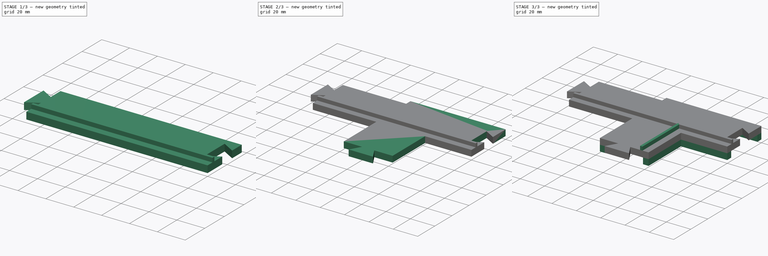
[diagram: build sequence overview — one tinted view per stage of 3, left to right]
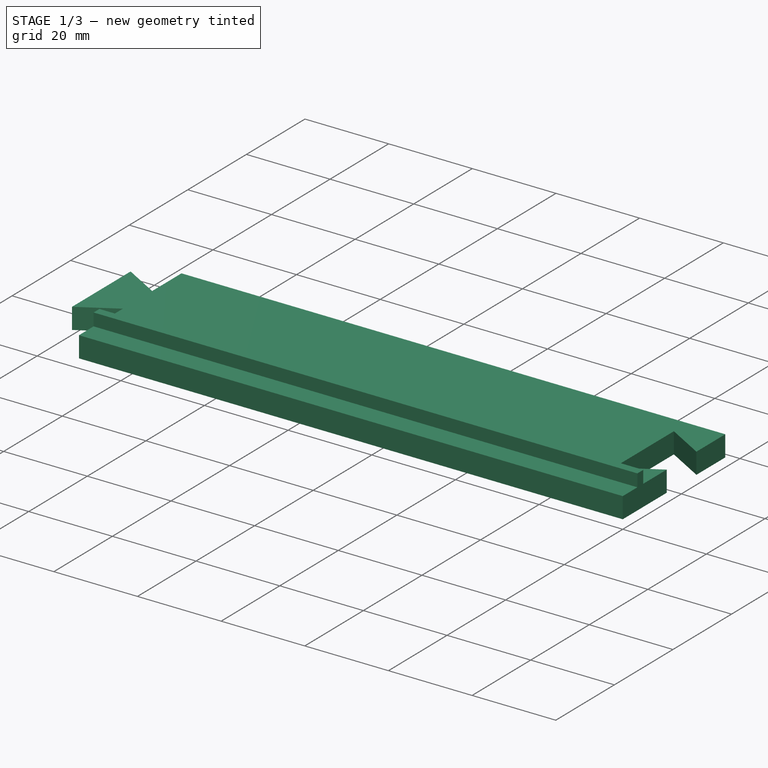
[diagram: stage 1 of 3 — iso view after this stage's code; geometry added in this stage tinted green]
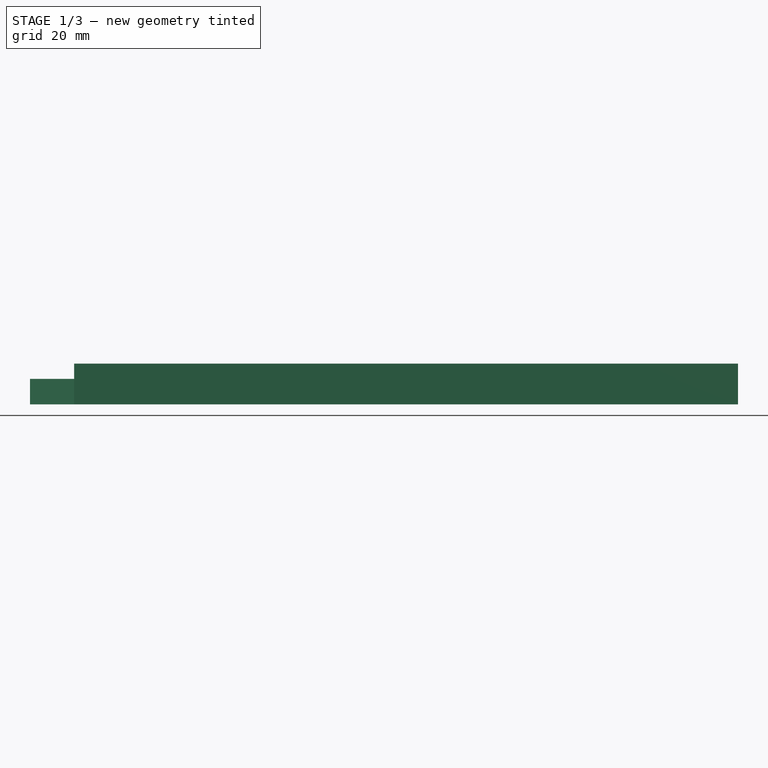
[diagram: stage 1 of 3 — front view after this stage's code; geometry added in this stage tinted green]
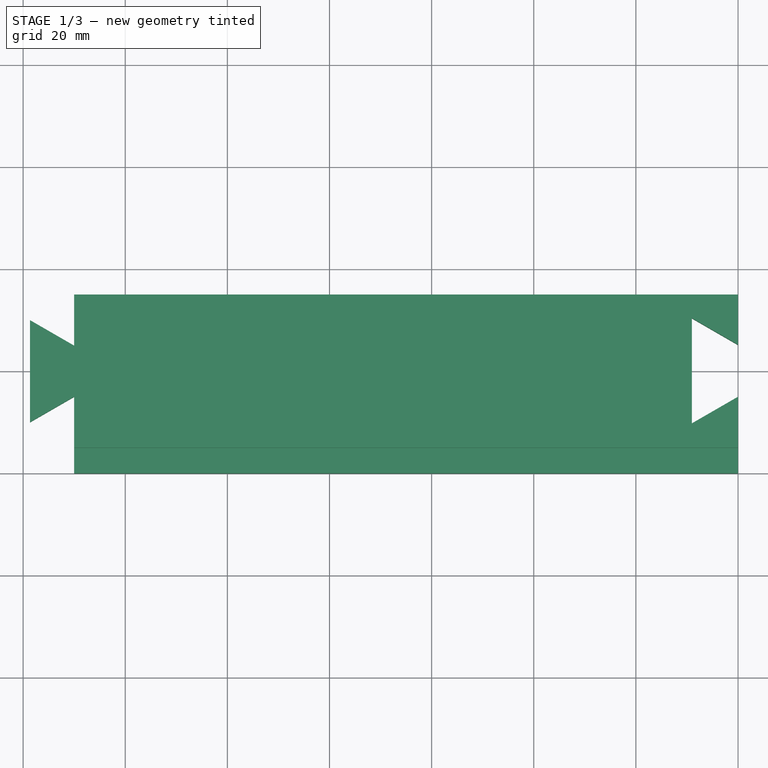
[diagram: stage 1 of 3 — top view after this stage's code; geometry added in this stage tinted green]
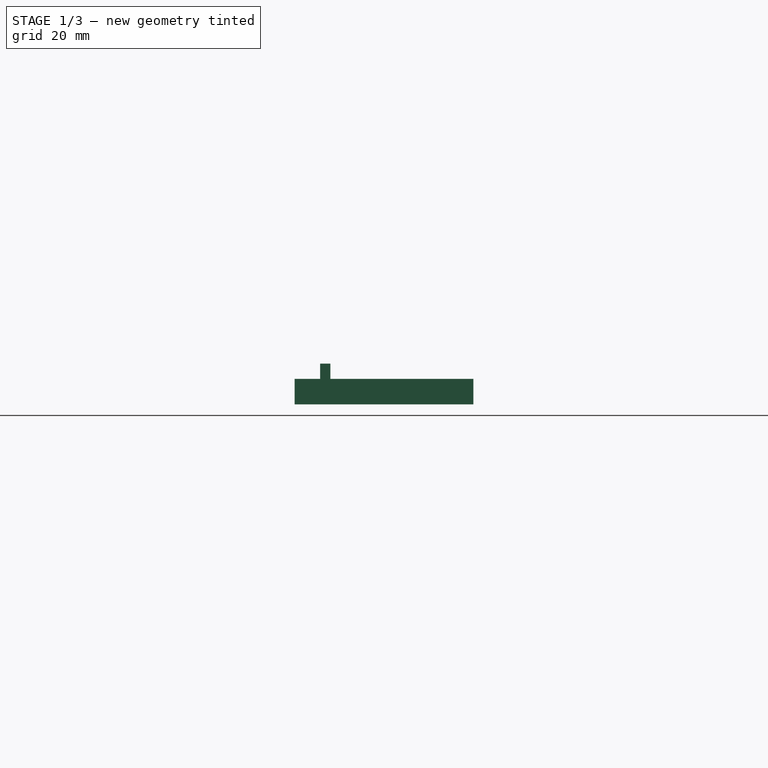
[diagram: stage 1 of 3 — right view after this stage's code; geometry added in this stage tinted green]
FCSTD DOCUMENT  (FreeCAD 0.20R)
Label: boardholdertop
License: All rights reserved
LicenseURL: http://en.wikipedia.org/wiki/All_rights_reserved
objects: Sketcher::SketchObject×5, PartDesign::Pad×5, PartDesign::Body×2, App::Part×2
note: 17 computed .brp shape members not serialized (recipe doc carries the construction recipe); baked Part::Feature solids carry a one-line shape summary decoded from their .brp

FEATURE [PartDesign::Body] Body  label="body"
  Group = -> [Sketch,Pad,Sketch001,Pad001,Sketch002,Pad002]
  Origin = -> Origin001
  Tip = -> Pad002
FEATURE [App::Part] Part  label="corner"
  Group = -> [Body]
  Origin = -> Origin
FEATURE [Sketcher::SketchObject] Sketch003
  FullyConstrained = true
  MapMode = 5
  Support = -> [XY_Plane003]
  sketch-geometry (12):
    g0: LineSegment StartX=0 StartY=0 StartZ=0 EndX=-130 EndY=0 EndZ=0
    g1: LineSegment StartX=-130 StartY=0 StartZ=0 EndX=-130 EndY=15 EndZ=0
    g2: LineSegment StartX=-130 StartY=15 StartZ=0 EndX=-138.66 EndY=10 EndZ=0
    g3: LineSegment StartX=-138.66 StartY=10 StartZ=0 EndX=-138.66 EndY=30 EndZ=0
    g4: LineSegment StartX=-138.66 StartY=30 StartZ=0 EndX=-130 EndY=25 EndZ=0
    g5: LineSegment StartX=-130 StartY=25 StartZ=0 EndX=-130 EndY=35 EndZ=0
    g6: LineSegment StartX=-130 StartY=35 StartZ=0 EndX=0 EndY=35 EndZ=0
    g7: LineSegment StartX=0 StartY=35 StartZ=0 EndX=0 EndY=25.15 EndZ=0
    g8: LineSegment StartX=0 StartY=25.15 StartZ=0 EndX=-9.04997 EndY=30.375 EndZ=0
    g9: LineSegment StartX=-9.04997 StartY=30.375 StartZ=0 EndX=-9.04997 EndY=9.775 EndZ=0
    g10: LineSegment StartX=-9.04997 StartY=9.775 StartZ=0 EndX=0 EndY=15 EndZ=0
    g11: LineSegment StartX=0 StartY=15 StartZ=0 EndX=0 EndY=0 EndZ=0
  constraints (35):
    c: Coincident(g-1,g0)
    c: PointOnObject(g0,g-1)
    c: Coincident(g0,g1)
    c: Vertical(g1)
    c: Coincident(g1,g2)
    c: Coincident(g2,g3)
    c: Vertical(g3)
    c: Coincident(g3,g4)
    c: Coincident(g4,g5)
    c: Vertical(g5)
    c: Coincident(g5,g6)
    c: PointOnObject(g6,g-2)
    c: Horizontal(g6)
    c: Coincident(g6,g7)
    c: PointOnObject(g7,g-2)
    c: Coincident(g7,g8)
    c: Coincident(g8,g9)
    c: Vertical(g9)
    c: Coincident(g9,g10)
    c: PointOnObject(g10,g-2)
    c: Coincident(g10,g11)
    c: Coincident(g11,g0)
    c: Distance(g0) = 130
    c: Equal(g6,g0)
    c: DistanceY(g0,g5) = 35
    c: Distance(g3) = 20
    c: Distance(g5) = 10
    c: Angle(g5,g4) = 1.0472
    c: Angle(g2,g1) = 1.0472
    c: Distance(g7) = 9.85
    c: Distance(g9) = 20.6
    c: Angle(g7,g8) = 1.0472
    c: Angle(g10,g11) = 1.0472
    c: Distance(g1) = 15
    c: Distance(g11) = 15
FEATURE [PartDesign::Pad] Pad003
  Direction = (0,0,1)
  Length = 5
  Length2 = 10
  Profile = -> Sketch003
  ReferenceAxis = -> Sketch003 [N_Axis]
  Type = 0
FEATURE [Sketcher::SketchObject] Sketch004
  ExternalGeometry = -> [Pad003]
  FullyConstrained = true
  MapMode = 5
  Placement = pos=(0,0,5) rot=(0,0,1;0rad)
  Support = -> [Pad003]
  sketch-geometry (4):
    g0: LineSegment StartX=0 StartY=5 StartZ=0 EndX=-130 EndY=5 EndZ=0
    g1: LineSegment StartX=0 StartY=7 StartZ=0 EndX=-130 EndY=7 EndZ=0
    g2: LineSegment StartX=0 StartY=7 StartZ=0 EndX=0 EndY=5 EndZ=0
    g3: LineSegment StartX=-130 StartY=7 StartZ=0 EndX=-130 EndY=5 EndZ=0
  constraints (12):
    c: PointOnObject(g0,g-3)
    c: Horizontal(g0)
    c: PointOnObject(g1,g-3)
    c: Horizontal(g1)
    c: PointOnObject(g0,g-5)
    c: PointOnObject(g1,g-5)
    c: DistanceY(g0,g1) = 2
    c: DistanceY(g-4,g0) = 5
    c: Coincident(g2,g1)
    c: Coincident(g2,g0)
    c: Coincident(g3,g1)
    c: Coincident(g3,g0)
FEATURE [PartDesign::Pad] Pad004
  BaseFeature = -> Pad003
  Direction = (0,0,1)
  Length = 3
  Length2 = 10
  Profile = -> Sketch004
  ReferenceAxis = -> Sketch004 [N_Axis]
  Type = 0
FEATURE [PartDesign::Body] Body001
  Group = -> [Sketch003,Pad003,Sketch004,Pad004]
  Origin = -> Origin003
  Tip = -> Pad004
FEATURE [App::Part] Part001  label="edge"
  Group = -> [Body001]
  Origin = -> Origin002
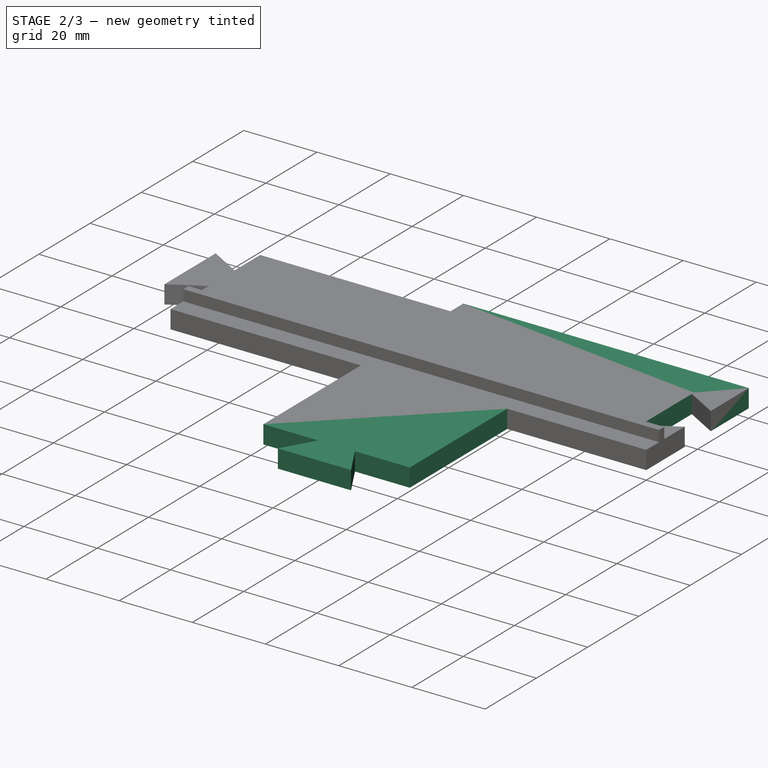
[diagram: stage 2 of 3 — iso view after this stage's code; geometry added in this stage tinted green]
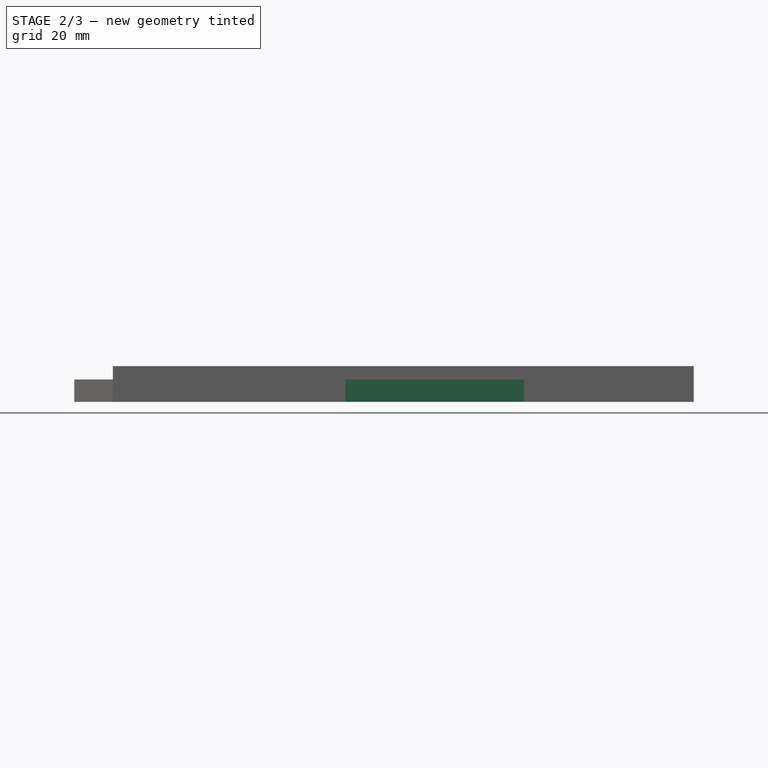
[diagram: stage 2 of 3 — front view after this stage's code; geometry added in this stage tinted green]
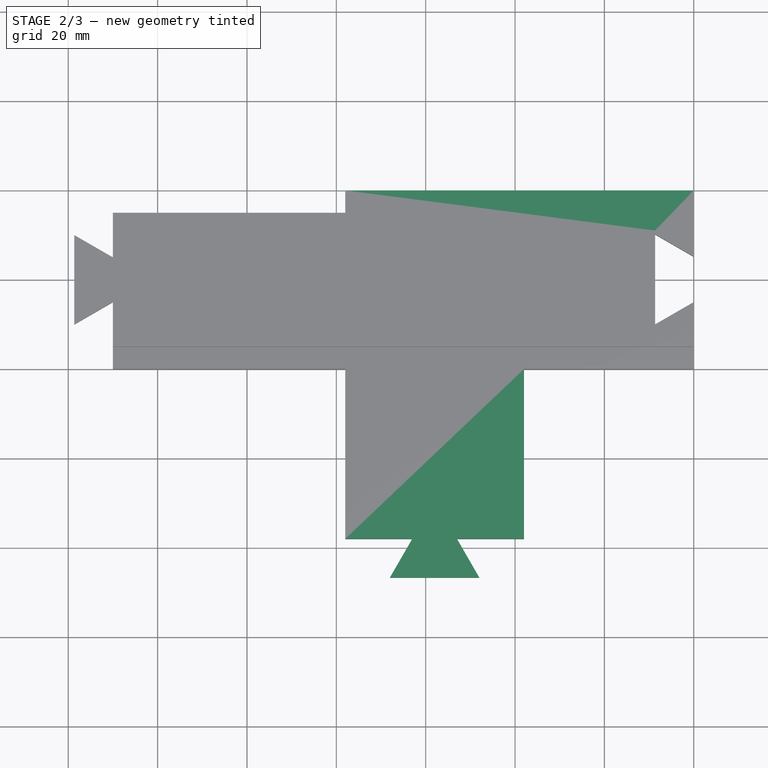
[diagram: stage 2 of 3 — top view after this stage's code; geometry added in this stage tinted green]
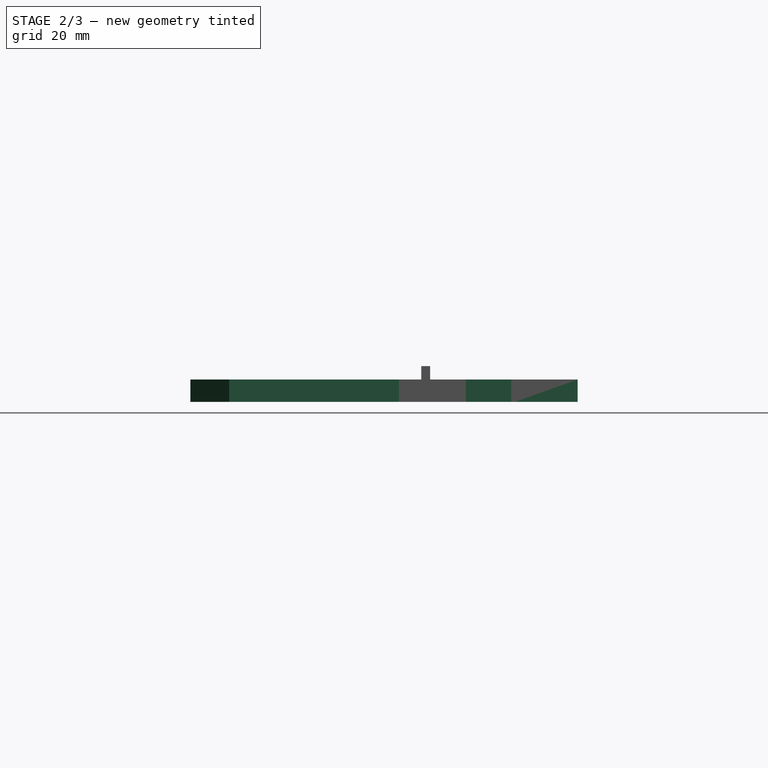
[diagram: stage 2 of 3 — right view after this stage's code; geometry added in this stage tinted green]
FEATURE [Sketcher::SketchObject] Sketch
  FullyConstrained = true
  MapMode = 5
  Support = -> [XY_Plane001]
  sketch-geometry (14):
    g0: LineSegment StartX=0 StartY=40 StartZ=0 EndX=0 EndY=26 EndZ=0
    g1: LineSegment StartX=0 StartY=26 StartZ=0 EndX=-8.66025 EndY=31 EndZ=0
    g2: LineSegment StartX=-8.66025 StartY=31 StartZ=0 EndX=-8.66025 EndY=9 EndZ=0
    g3: LineSegment StartX=-8.66025 StartY=9 StartZ=0 EndX=0 EndY=14 EndZ=0
    g4: LineSegment StartX=0 StartY=14 StartZ=0 EndX=0 EndY=0 EndZ=0
    g5: LineSegment StartX=0 StartY=0 StartZ=0 EndX=-38 EndY=0 EndZ=0
    g6: LineSegment StartX=-38 StartY=0 StartZ=0 EndX=-38 EndY=-38 EndZ=0
    g7: LineSegment StartX=-38 StartY=-38 StartZ=0 EndX=-53 EndY=-38 EndZ=0
    g8: LineSegment StartX=-53 StartY=-38 StartZ=0 EndX=-48 EndY=-46.6603 EndZ=0
    g9: LineSegment StartX=-48 StartY=-46.6603 StartZ=0 EndX=-68 EndY=-46.6603 EndZ=0
    g10: LineSegment StartX=-68 StartY=-46.6603 StartZ=0 EndX=-63 EndY=-38 EndZ=0
    g11: LineSegment StartX=-63 StartY=-38 StartZ=0 EndX=-78 EndY=-38 EndZ=0
    g12: LineSegment StartX=-78 StartY=-38 StartZ=0 EndX=-78 EndY=40 EndZ=0
    g13: LineSegment StartX=-78 StartY=40 StartZ=0 EndX=0 EndY=40 EndZ=0
  constraints (41):
    c: Vertical(g0)
    c: Coincident(g0,g1)
    c: Coincident(g1,g2)
    c: Coincident(g2,g3)
    c: Coincident(g3,g4)
    c: Coincident(g4,g5)
    c: Horizontal(g5)
    c: Coincident(g5,g6)
    c: Vertical(g6)
    c: Coincident(g6,g7)
    c: Horizontal(g7)
    c: Coincident(g7,g8)
    c: Coincident(g8,g9)
    c: Coincident(g9,g10)
    c: Coincident(g10,g11)
    c: Horizontal(g11)
    c: Coincident(g11,g12)
    c: Vertical(g12)
    c: Coincident(g12,g13)
    c: Coincident(g13,g0)
    c: Horizontal(g13)
    c: Horizontal(g9)
    c: Vertical(g4)
    c: Vertical(g2)
    c: Equal(g11,g7)
    c: Equal(g4,g0)
    c: Equal(g5,g6)
    c: Equal(g12,g13)
    c: DistanceY(g4,g0) = 40
    c: DistanceX(g11,g6) = 40
    c: DistanceX(g0,g3) = 0
    c: Distance(g9) = 20
    c: Distance(g2) = 22
    c: Distance(g0) = 14
    c: Distance(g7) = 15
    c: Angle(g11,g10) = 1.0472
    c: Angle(g8,g7) = 1.0472
    c: Angle(g3,g4) = 1.0472
    c: Angle(g0,g1) = 1.0472
    c: Coincident(g4,g-1)
    c: Distance(g5) = 38
FEATURE [PartDesign::Pad] Pad
  Direction = (0,0,1)
  Length = 5
  Length2 = 10
  Profile = -> Sketch
  ReferenceAxis = -> Sketch [N_Axis]
  Type = 0
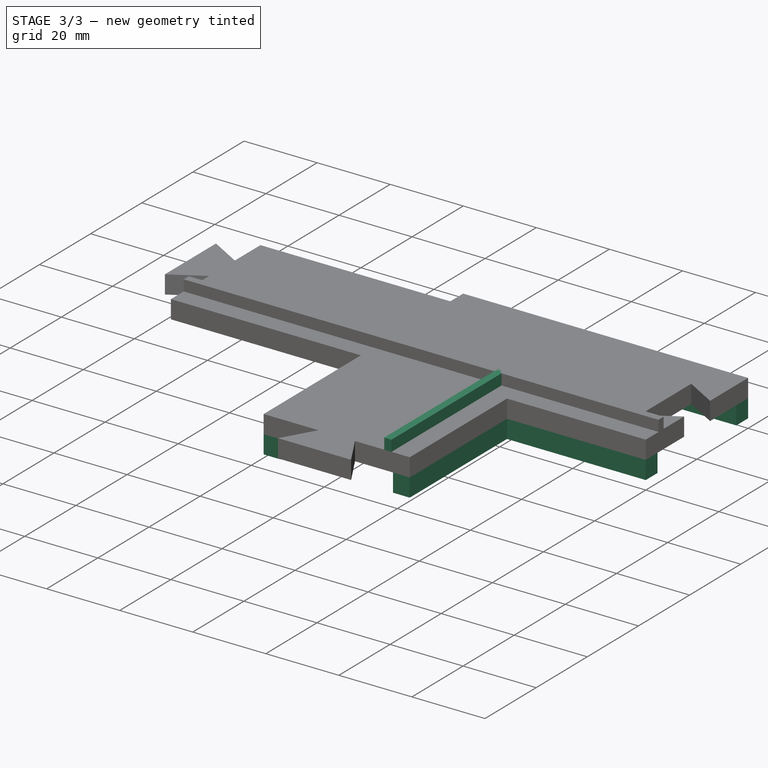
[diagram: stage 3 of 3 — iso view after this stage's code; geometry added in this stage tinted green]
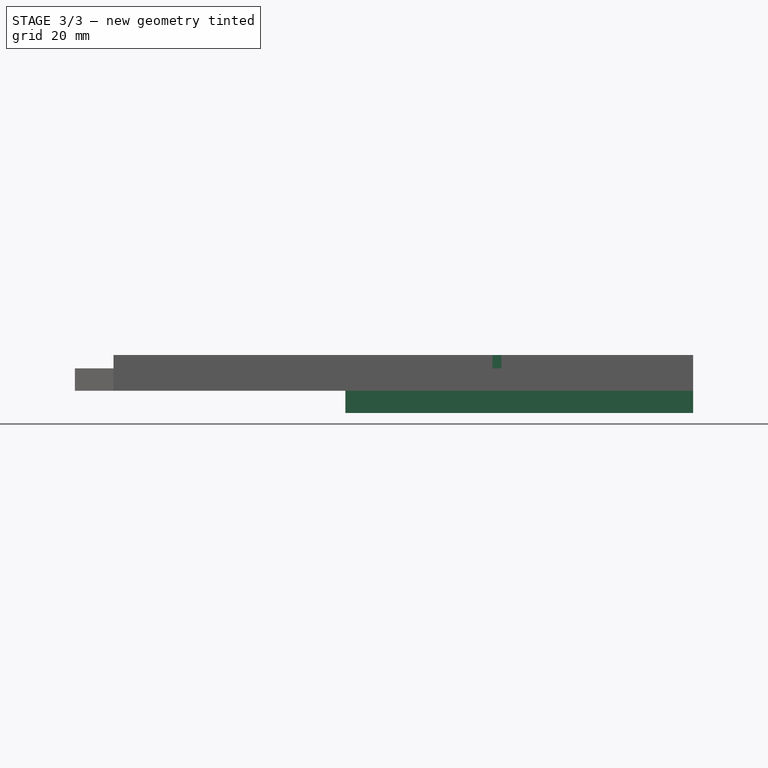
[diagram: stage 3 of 3 — front view after this stage's code; geometry added in this stage tinted green]
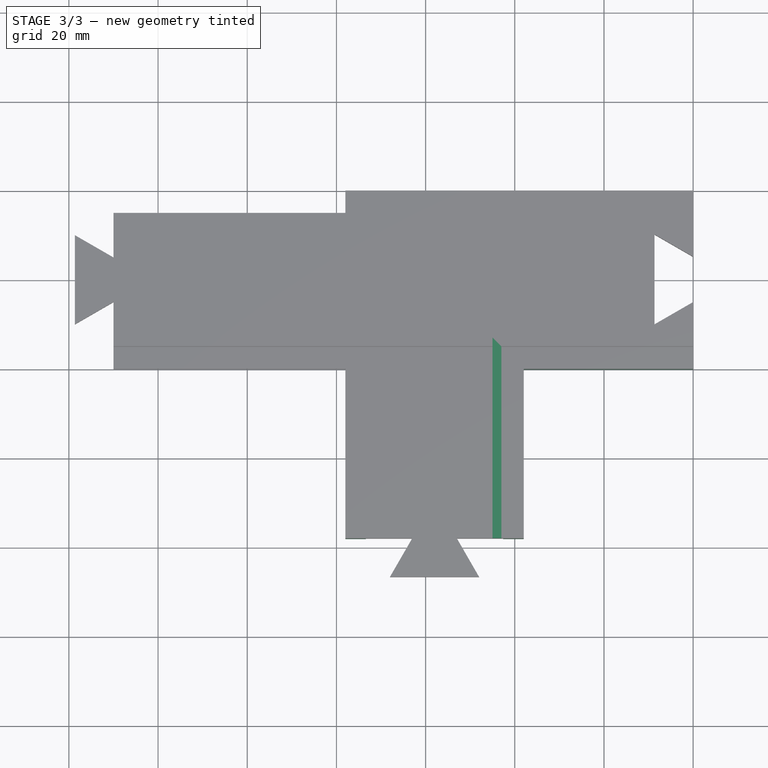
[diagram: stage 3 of 3 — top view after this stage's code; geometry added in this stage tinted green]
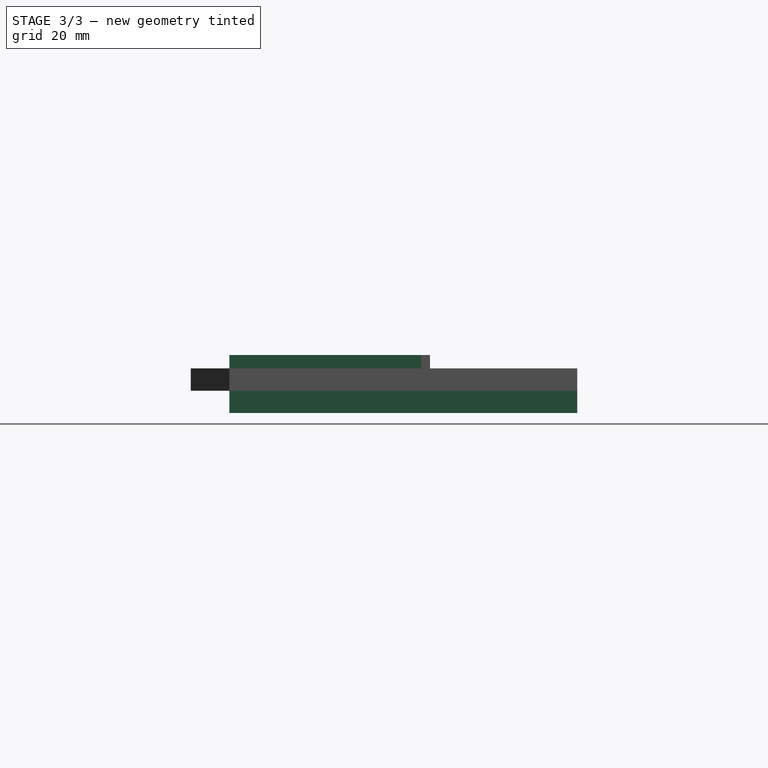
[diagram: stage 3 of 3 — right view after this stage's code; geometry added in this stage tinted green]
FEATURE [Sketcher::SketchObject] Sketch001
  ExternalGeometry = -> [Pad]
  FullyConstrained = true
  MapMode = 5
  Placement = pos=(0,0,5) rot=(0,0,1;0rad)
  Support = -> [Pad]
  sketch-geometry (6):
    g0: LineSegment StartX=0 StartY=7 StartZ=0 EndX=-45 EndY=7 EndZ=0
    g1: LineSegment StartX=-45 StartY=7 StartZ=0 EndX=-45 EndY=-38 EndZ=0
    g2: LineSegment StartX=-43 StartY=-38 StartZ=0 EndX=-43 EndY=5 EndZ=0
    g3: LineSegment StartX=-43 StartY=5 StartZ=0 EndX=0 EndY=5 EndZ=0
    g4: LineSegment StartX=-45 StartY=-38 StartZ=0 EndX=-43 EndY=-38 EndZ=0
    g5: LineSegment StartX=0 StartY=7 StartZ=0 EndX=0 EndY=5 EndZ=0
  constraints (18):
    c: Horizontal(g0)
    c: Horizontal(g3)
    c: Vertical(g2)
    c: Vertical(g1)
    c: DistanceX(g2,g-5) = 5
    c: DistanceY(g-6,g3) = 5
    c: Coincident(g2,g3)
    c: Coincident(g0,g1)
    c: DistanceX(g1,g2) = 2
    c: DistanceY(g3,g0) = 2
    c: PointOnObject(g0,g-3)
    c: PointOnObject(g3,g-3)
    c: PointOnObject(g2,g-4)
    c: PointOnObject(g1,g-4)
    c: Coincident(g4,g1)
    c: Coincident(g4,g2)
    c: Coincident(g5,g0)
    c: Coincident(g5,g3)
FEATURE [PartDesign::Pad] Pad001
  BaseFeature = -> Pad
  Direction = (0,0,1)
  Length = 3
  Length2 = 10
  Profile = -> Sketch001
  ReferenceAxis = -> Sketch001 [N_Axis]
  Type = 0
FEATURE [Sketcher::SketchObject] Sketch002
  ExternalGeometry = -> [Pad001]
  FullyConstrained = true
  MapMode = 5
  Placement = pos=(0,0,0) rot=(1,0,0;3.14159rad)
  Support = -> [Pad001]
  sketch-geometry (12):
    g0: LineSegment StartX=0 StartY=0 StartZ=0 EndX=-38 EndY=0 EndZ=0
    g1: LineSegment StartX=-38 StartY=0 StartZ=0 EndX=-38 EndY=38 EndZ=0
    g2: LineSegment StartX=-38 StartY=38 StartZ=0 EndX=-42.6 EndY=38 EndZ=0
    g3: LineSegment StartX=-42.6 StartY=38 StartZ=0 EndX=-42.6 EndY=-4.6 EndZ=0
    g4: LineSegment StartX=-42.6 StartY=-4.6 StartZ=0 EndX=0 EndY=-4.6 EndZ=0
    g5: LineSegment StartX=0 StartY=-4.6 StartZ=0 EndX=0 EndY=0 EndZ=0
    g6: LineSegment StartX=0 StartY=-40 StartZ=0 EndX=0 EndY=-35.4 EndZ=0
    g7: LineSegment StartX=0 StartY=-35.4 StartZ=0 EndX=-73.4 EndY=-35.4 EndZ=0
    g8: LineSegment StartX=-73.4 StartY=-35.4 StartZ=0 EndX=-73.4 EndY=38 EndZ=0
    g9: LineSegment StartX=-73.4 StartY=38 StartZ=0 EndX=-78 EndY=38 EndZ=0
    g10: LineSegment StartX=-78 StartY=38 StartZ=0 EndX=-78 EndY=-40 EndZ=0
    g11: LineSegment StartX=-78 StartY=-40 StartZ=0 EndX=0 EndY=-40 EndZ=0
  constraints (30):
    c: Coincident(g-4,g0)
    c: Coincident(g0,g-7)
    c: Coincident(g0,g1)
    c: Coincident(g1,g-7)
    c: Coincident(g1,g2)
    c: Coincident(g2,g3)
    c: Vertical(g3)
    c: Coincident(g3,g4)
    c: PointOnObject(g4,g-4)
    c: Horizontal(g4)
    c: Coincident(g4,g5)
    c: Coincident(g5,g0)
    c: PointOnObject(g2,g-6)
    c: Distance(g2) = 4.6
    c: Equal(g2,g5)
    c: Coincident(g-10,g6)
    c: PointOnObject(g6,g-5)
    c: Coincident(g6,g7)
    c: Horizontal(g7)
    c: Coincident(g7,g8)
    c: PointOnObject(g8,g-8)
    c: Vertical(g8)
    c: Coincident(g8,g9)
    c: Coincident(g9,g-9)
    c: Coincident(g9,g10)
    c: Coincident(g10,g-10)
    c: Coincident(g10,g11)
    c: Coincident(g11,g6)
    c: Distance(g6) = 4.6
    c: Equal(g6,g9)
FEATURE [PartDesign::Pad] Pad002
  BaseFeature = -> Pad001
  Direction = (0,0,-1)
  Length = 5
  Length2 = 10
  Profile = -> Sketch002
  ReferenceAxis = -> Sketch002 [N_Axis]
  Type = 0
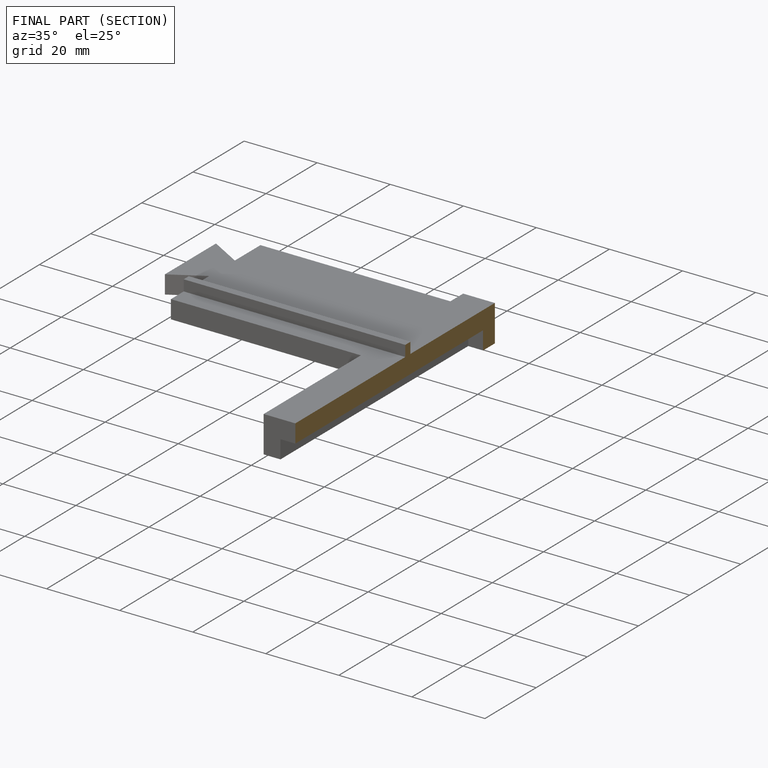
[diagram: finished part — half-section view (interior)]
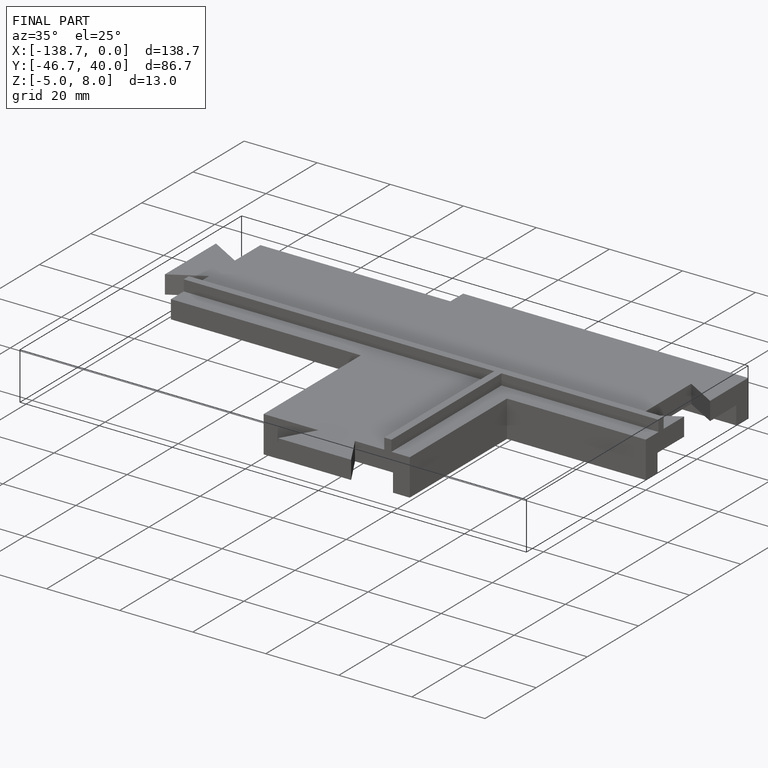
[diagram: finished part — iso view with bounding-box wireframe]
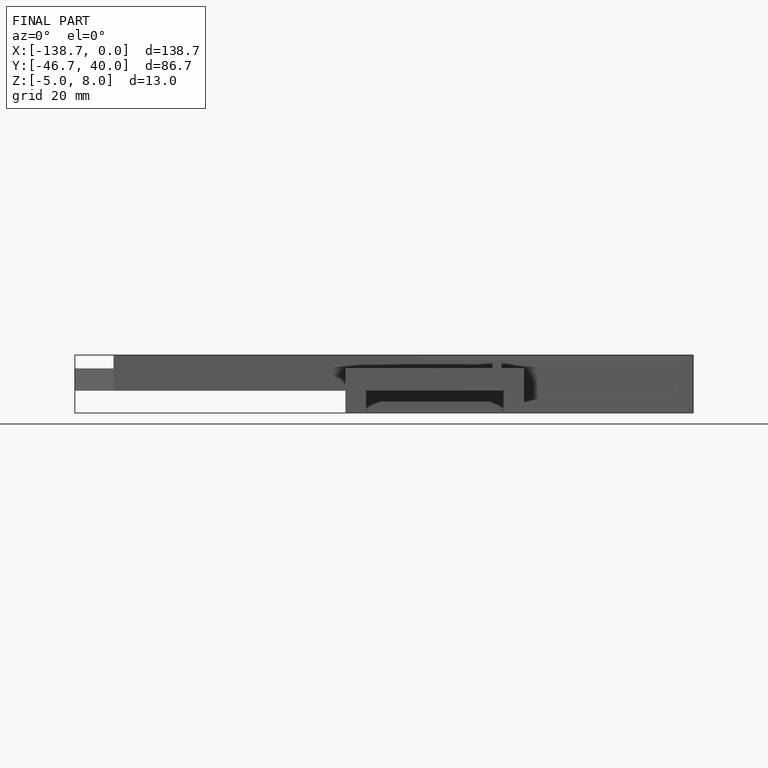
[diagram: finished part — front view with bounding-box wireframe]
